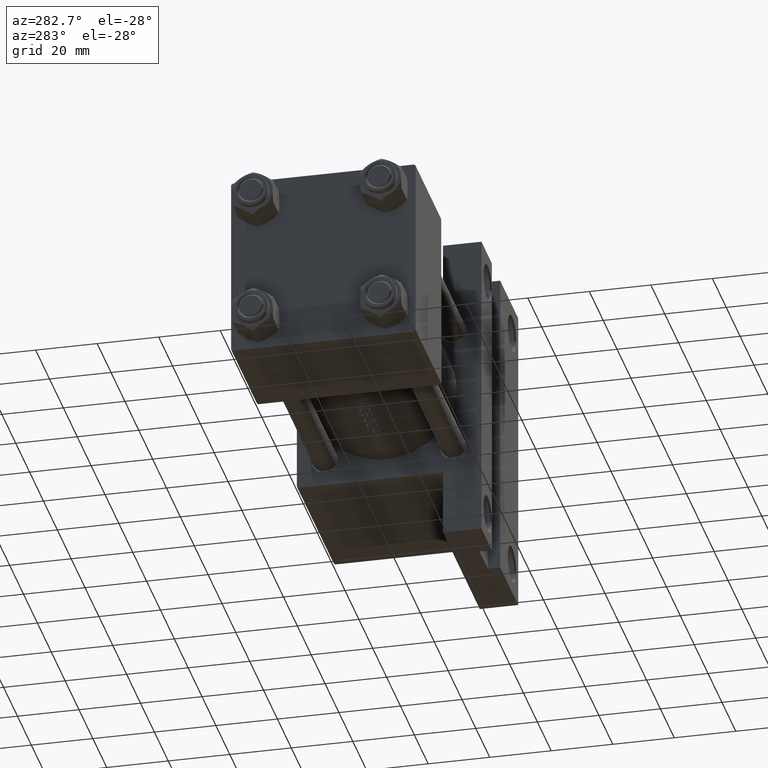
[diagram: clean part render]
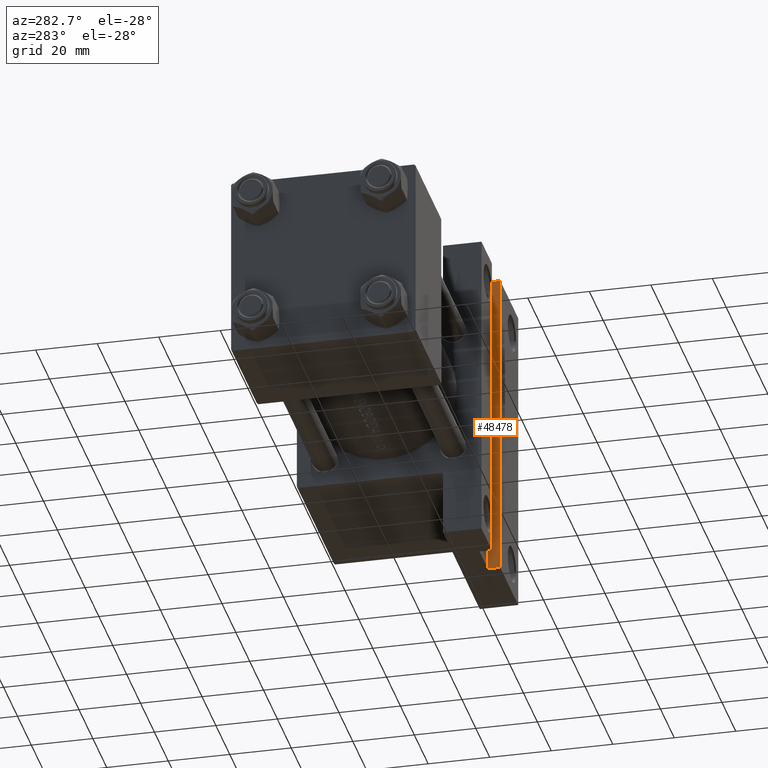
[diagram: same view with one face highlighted and labeled with its STEP entity id]
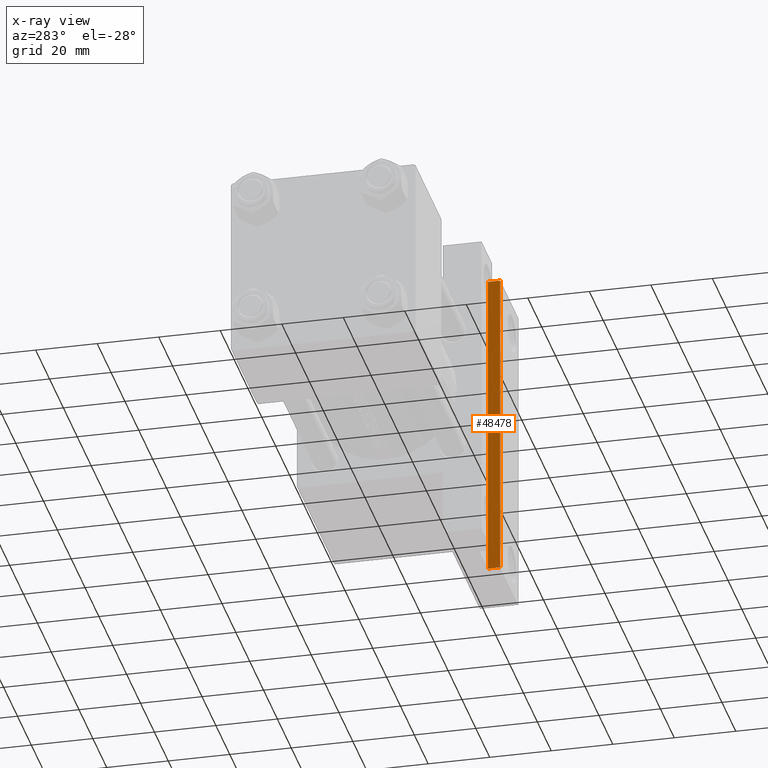
[diagram: x-ray of the same camera — body ghosted, the highlighted face saturated]
A machine part, auxiliary view. The second image highlights one B-rep face of the part: STEP entity #48478.
The next image is the same camera in x-ray: the body ghosted, the highlighted face saturated — about 0% of this face is hidden behind the body in this view.
In plain terms, the highlighted planar face has unit normal (1, 0, 0).
Its self-contained STEP definition (entity closure, byte-faithful):
#327 = CARTESIAN_POINT ( 'NONE',  ( 121.9999999999999858, 51.50000000000000711, -25.99999999999999645 ) ) ;
#585 = EDGE_CURVE ( 'NONE', #17008, #46062, #40091, .T. ) ;
#3956 = CARTESIAN_POINT ( 'NONE',  ( 121.9999999999999858, -51.49999999999999289, -25.99999999999999645 ) ) ;
#4065 = EDGE_CURVE ( 'NONE', #21686, #43863, #36444, .T. ) ;
#4104 = VECTOR ( 'NONE', #9755, 1000.000000000000000 ) ;
#5705 = EDGE_CURVE ( 'NONE', #43863, #46062, #18830, .T. ) ;
#5824 = ORIENTED_EDGE ( 'NONE', *, *, #46334, .F. ) ;
#9177 = VECTOR ( 'NONE', #40413, 1000.000000000000000 ) ;
#9755 = DIRECTION ( 'NONE',  ( -0.000000000000000000, -0.000000000000000000, -1.000000000000000000 ) ) ;
#11424 = DIRECTION ( 'NONE',  ( 0.000000000000000000, 0.000000000000000000, -1.000000000000000000 ) ) ;
#13891 = VECTOR ( 'NONE', #38213, 1000.000000000000000 ) ;
#15886 = FACE_OUTER_BOUND ( 'NONE', #33738, .T. ) ;
#16803 = CARTESIAN_POINT ( 'NONE',  ( 121.9999999999999858, -51.49999999999999289, -29.99999999999999645 ) ) ;
#17008 = VERTEX_POINT ( 'NONE', #48257 ) ;
#18830 = LINE ( 'NONE', #34009, #13891 ) ;
#19369 = PLANE ( 'NONE',  #25837 ) ;
#21686 = VERTEX_POINT ( 'NONE', #327 ) ;
#22843 = LINE ( 'NONE', #3956, #44010 ) ;
#24977 = ORIENTED_EDGE ( 'NONE', *, *, #585, .F. ) ;
#25837 = AXIS2_PLACEMENT_3D ( 'NONE', #45497, #42003, #11424 ) ;
#29195 = ORIENTED_EDGE ( 'NONE', *, *, #4065, .T. ) ;
#29648 = DIRECTION ( 'NONE',  ( -0.000000000000000000, -1.000000000000000000, -0.000000000000000000 ) ) ;
#33738 = EDGE_LOOP ( 'NONE', ( #48217, #24977, #5824, #29195 ) ) ;
#34009 = CARTESIAN_POINT ( 'NONE',  ( 121.9999999999999858, -51.49999999999999289, -29.99999999999999645 ) ) ;
#36444 = LINE ( 'NONE', #48124, #9177 ) ;
#36614 = CARTESIAN_POINT ( 'NONE',  ( 121.9999999999999858, -51.49999999999999289, -25.99999999999999645 ) ) ;
#38213 = DIRECTION ( 'NONE',  ( -0.000000000000000000, -1.000000000000000000, -0.000000000000000000 ) ) ;
#40091 = LINE ( 'NONE', #36614, #4104 ) ;
#40413 = DIRECTION ( 'NONE',  ( -0.000000000000000000, -0.000000000000000000, -1.000000000000000000 ) ) ;
#42003 = DIRECTION ( 'NONE',  ( 1.000000000000000000, 0.000000000000000000, 0.000000000000000000 ) ) ;
#43863 = VERTEX_POINT ( 'NONE', #45669 ) ;
#44010 = VECTOR ( 'NONE', #29648, 1000.000000000000000 ) ;
#45497 = CARTESIAN_POINT ( 'NONE',  ( 121.9999999999999858, -51.49999999999999289, -25.99999999999999645 ) ) ;
#45669 = CARTESIAN_POINT ( 'NONE',  ( 121.9999999999999858, 51.50000000000000711, -29.99999999999999645 ) ) ;
#46062 = VERTEX_POINT ( 'NONE', #16803 ) ;
#46334 = EDGE_CURVE ( 'NONE', #21686, #17008, #22843, .T. ) ;
#48124 = CARTESIAN_POINT ( 'NONE',  ( 121.9999999999999858, 51.50000000000000711, -25.99999999999999645 ) ) ;
#48217 = ORIENTED_EDGE ( 'NONE', *, *, #5705, .T. ) ;
#48257 = CARTESIAN_POINT ( 'NONE',  ( 121.9999999999999858, -51.50000000000000711, -25.99999999999999645 ) ) ;
#48478 = ADVANCED_FACE ( 'NONE', ( #15886 ), #19369, .F. ) ;